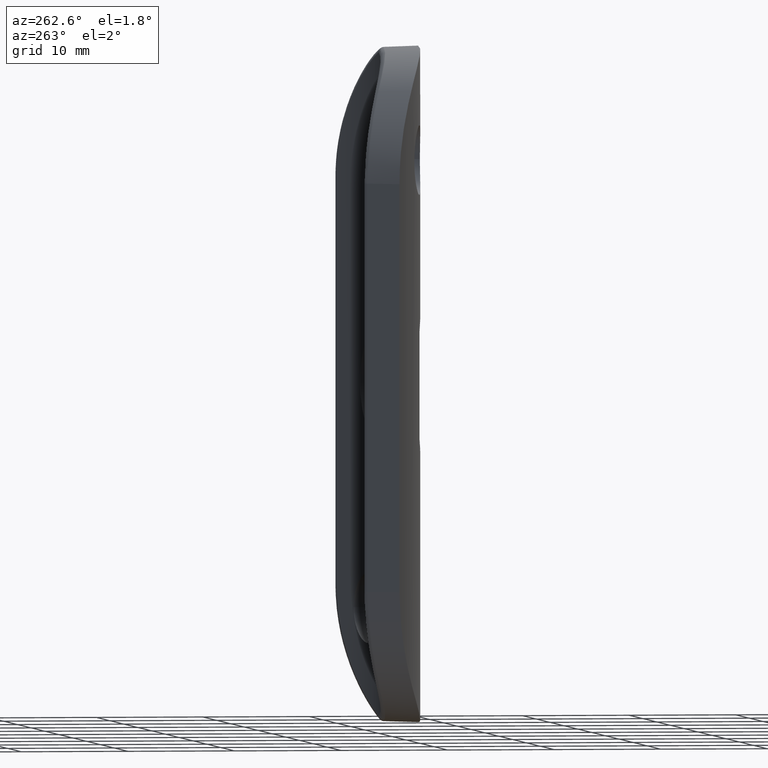
[diagram: clean part render]
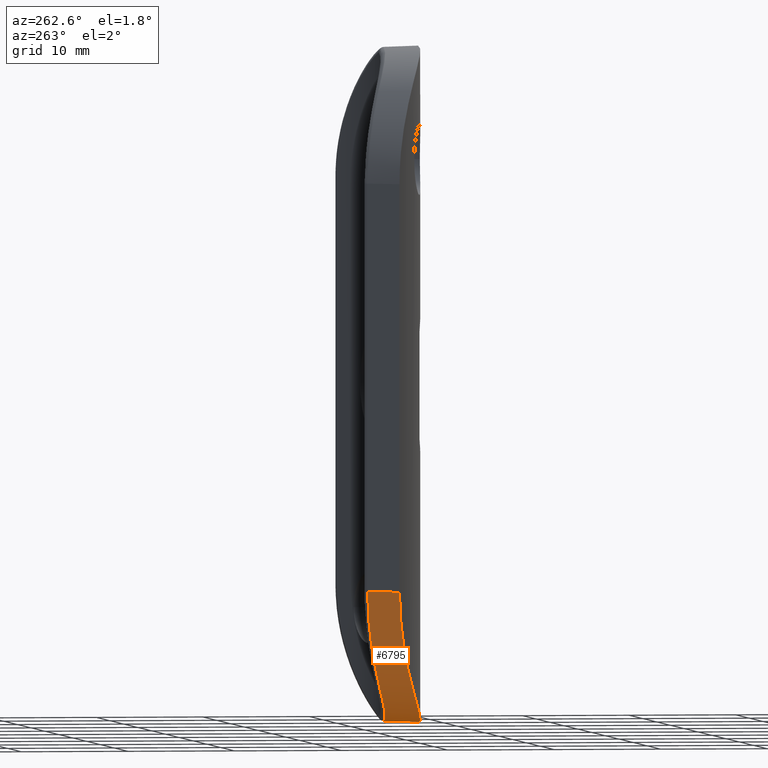
[diagram: same view with one face highlighted and labeled with its STEP entity id]
A machine part, auxiliary view. The second image highlights one B-rep face of the part: STEP entity #6795.
In plain terms, the highlighted cylindrical surface (partial cylindrical patch) has radius 12.5 mm, axis along (-0.502, -0.8649, 0).
Its self-contained STEP definition (entity closure, byte-faithful):
#140 = CARTESIAN_POINT ( 'NONE',  ( -2.016021714778223251E-15, -3.699999999999998401, -31.50000000000000000 ) ) ;
#177 = CARTESIAN_POINT ( 'NONE',  ( -9.300008146786327146, -1.900049482960085134, -27.73941482228949340 ) ) ;
#359 = CARTESIAN_POINT ( 'NONE',  ( -3.338558843723539393, -3.478577582102126975, -31.14149012677146189 ) ) ;
#551 = CARTESIAN_POINT ( 'NONE',  ( -1.526829681125241756, -0.3965501718721280433, -31.14486316553925249 ) ) ;
#597 = CARTESIAN_POINT ( 'NONE',  ( -6.018685622804217594, 0.4243408902976385511, -29.17129357762807373 ) ) ;
#970 = VECTOR ( 'NONE', #4106, 1000.000000000000227 ) ;
#1079 = ORIENTED_EDGE ( 'NONE', *, *, #3726, .F. ) ;
#1298 = CARTESIAN_POINT ( 'NONE',  ( -10.31210575782371919, -1.465570699199099103, -26.45786494367684583 ) ) ;
#1499 = CARTESIAN_POINT ( 'NONE',  ( -10.56531761606724018, 2.261153944151151229, -22.04284560907184698 ) ) ;
#1536 = CARTESIAN_POINT ( 'NONE',  ( -5.065702197598429102, 0.1728216056635648035, -29.78806897644024332 ) ) ;
#1648 = ORIENTED_EDGE ( 'NONE', *, *, #12598, .T. ) ;
#1658 = CARTESIAN_POINT ( 'NONE',  ( -9.895329955964312418, 1.917468678574773433, -24.23304662918589614 ) ) ;
#1720 = EDGE_CURVE ( 'NONE', #7865, #6485, #7088, .T. ) ;
#2619 = CARTESIAN_POINT ( 'NONE',  ( -1.904176963450264104, -0.3623903095538331676, -31.05567707528683741 ) ) ;
#3097 = CARTESIAN_POINT ( 'NONE',  ( -2.016021714778223251E-15, -3.699999999999998401, -31.50000000000000000 ) ) ;
#3234 = CARTESIAN_POINT ( 'NONE',  ( -10.07438829399573521, -1.572627490107006532, -26.79492946129611042 ) ) ;
#3366 = EDGE_CURVE ( 'NONE', #5743, #5961, #3578, .T. ) ;
#3475 = CARTESIAN_POINT ( 'NONE',  ( -10.64252913189476324, 2.302479216670974882, -21.66950056038003325 ) ) ;
#3578 = LINE ( 'NONE', #9182, #970 ) ;
#3641 = CARTESIAN_POINT ( 'NONE',  ( -5.708646956014399976, 0.3375534250088057520, -29.38719145087422646 ) ) ;
#3698 = CARTESIAN_POINT ( 'NONE',  ( -12.20702789844867198, -0.5026615294484174656, -21.91533413186608570 ) ) ;
#3726 = EDGE_CURVE ( 'NONE', #5961, #6485, #8325, .T. ) ;
#3921 = ORIENTED_EDGE ( 'NONE', *, *, #3366, .F. ) ;
#3931 = DIRECTION ( 'NONE',  ( 0.8648629577444376659, -0.5020080321285140812, 0.000000000000000000 ) ) ;
#4094 = CARTESIAN_POINT ( 'NONE',  ( -5.702585475903297230, -3.050987619649732085, -30.36861081162538767 ) ) ;
#4106 = DIRECTION ( 'NONE',  ( -0.5020080321285140812, -0.8648629577444375549, 0.000000000000000000 ) ) ;
#4457 = CARTESIAN_POINT ( 'NONE',  ( -7.442532452984151448, 0.8776886570223541018, -27.97428042536247972 ) ) ;
#5081 = CARTESIAN_POINT ( 'NONE',  ( 2.793859383087342557E-15, -2.618632816214323977, -31.50000000000000000 ) ) ;
#5195 = B_SPLINE_CURVE_WITH_KNOTS ( 'NONE', 3,
 ( #6460, #11488, #9373, #3475, #1499, #5451, #5497, #1658, #9411, #8411, #9540, #12284, #8495, #4457, #10416, #597, #3641, #1536, #6587, #11366, #11406, #2619, #551, #5578, #10535, #12444 ),
 .UNSPECIFIED., .F., .F.,
 ( 4, 2, 2, 2, 2, 2, 2, 2, 2, 2, 2, 2, 4 ),
 ( 0.000000000000000000, 0.002296403821923590199, 0.003444605732885385081, 0.004592807643847180397, 0.006889211465770759754, 0.008037413376732551601, 0.009185615287694341713, 0.01148201910961793235, 0.01263022102057972246, 0.01377842293154151430, 0.01607482675346509279, 0.01722302866442688637, 0.01837123057538867649 ),
 .UNSPECIFIED. ) ;
#5216 = CARTESIAN_POINT ( 'NONE',  ( -4.149397095232772337, -3.355257489485060862, -30.92713428512036700 ) ) ;
#5451 = CARTESIAN_POINT ( 'NONE',  ( -10.37901783092901553, 2.163308026600583744, -22.78354983175703907 ) ) ;
#5497 = CARTESIAN_POINT ( 'NONE',  ( -10.26920461469039658, 2.106422435699069062, -23.15280607631128262 ) ) ;
#5578 = CARTESIAN_POINT ( 'NONE',  ( -0.7683342868648501689, -0.4460393953555568114, -31.29188355289227985 ) ) ;
#5676 = CARTESIAN_POINT ( 'NONE',  ( -11.89509760923781556, -0.6753860525964977546, -23.12875431539337256 ) ) ;
#5743 = VERTEX_POINT ( 'NONE', #8493 ) ;
#5869 = CARTESIAN_POINT ( 'NONE',  ( -1.689213028194525013, -6.610188049442923486, -19.00000000000000355 ) ) ;
#5936 = CYLINDRICAL_SURFACE ( 'NONE', #8647, 12.50000000000000178 ) ;
#5961 = VERTEX_POINT ( 'NONE', #9554 ) ;
#6030 = CARTESIAN_POINT ( 'NONE',  ( 2.309036246115207171E-15, -1.539556005456988119, -31.46468694567383650 ) ) ;
#6163 = CARTESIAN_POINT ( 'NONE',  ( -4.544984467126861993, -3.284854228750729188, -30.80156398158714026 ) ) ;
#6376 = ORIENTED_EDGE ( 'NONE', *, *, #1720, .T. ) ;
#6460 = CARTESIAN_POINT ( 'NONE',  ( -10.89068216193508576, 2.437456407839871275, -19.00000000000000355 ) ) ;
#6485 = VERTEX_POINT ( 'NONE', #7218 ) ;
#6587 = CARTESIAN_POINT ( 'NONE',  ( -4.735884520321929081, 0.09562791914021717687, -29.97130340277394822 ) ) ;
#6795 = ADVANCED_FACE ( 'NONE', ( #12240 ), #5936, .T. ) ;
#7088 =( BOUNDED_CURVE ( )  B_SPLINE_CURVE ( 3, ( #11925, #6030, #5081, #140 ),
 .UNSPECIFIED., .F., .T. ) 
 B_SPLINE_CURVE_WITH_KNOTS ( ( 4, 4 ),
 ( 1.440603158773790415, 1.570796326794896336 ),
 .UNSPECIFIED. ) 
 CURVE ( )  GEOMETRIC_REPRESENTATION_ITEM ( )  RATIONAL_B_SPLINE_CURVE ( ( 1.000000000000000000, 0.9985879769840240172, 0.9985879769840240172, 1.000000000000000000 ) ) 
 REPRESENTATION_ITEM ( '' )  );
#7133 = EDGE_LOOP ( 'NONE', ( #3921, #1648, #6376, #1079 ) ) ;
#7140 = CARTESIAN_POINT ( 'NONE',  ( -2.926783807945073423, -3.530881000595796682, -31.22921292494588030 ) ) ;
#7218 = CARTESIAN_POINT ( 'NONE',  ( -2.016021714778223251E-15, -3.699999999999998401, -31.50000000000000000 ) ) ;
#7274 = CARTESIAN_POINT ( 'NONE',  ( -1.687016327122348391, -3.656671740366639778, -31.43580141742700107 ) ) ;
#7736 = CARTESIAN_POINT ( 'NONE',  ( -12.49999999999999822, -0.3350876478364975264, -19.84933832110929686 ) ) ;
#7865 = VERTEX_POINT ( 'NONE', #10410 ) ;
#8325 = B_SPLINE_CURVE_WITH_KNOTS ( 'NONE', 3,
 ( #8963, #7736, #10674, #3698, #11578, #5676, #12542, #11965, #10029, #1298, #3234, #9091, #177, #12043, #12133, #12003, #4094, #6163, #5216, #359, #7140, #7274, #10991, #3097 ),
 .UNSPECIFIED., .F., .F.,
 ( 4, 2, 2, 2, 2, 2, 2, 2, 2, 2, 2, 4 ),
 ( 3.480018757039481625E-18, 0.002512006382847119679, 0.003768009574270677568, 0.005024012765694235889, 0.007536019148541359472, 0.008792022339964926034, 0.01004802553138849260, 0.01256003191423563439, 0.01507203829708277619, 0.01632804148850634449, 0.01758404467992991799, 0.02009605106277705805 ),
 .UNSPECIFIED. ) ;
#8411 = CARTESIAN_POINT ( 'NONE',  ( -9.035279559040494846, 1.517712944394772112, -25.89464071519140376 ) ) ;
#8493 = CARTESIAN_POINT ( 'NONE',  ( -10.89068216193508576, 2.437456407839871275, -19.00000000000000355 ) ) ;
#8495 = CARTESIAN_POINT ( 'NONE',  ( -8.172666840697733193, 1.156575065583176798, -27.12569061865150033 ) ) ;
#8647 = AXIS2_PLACEMENT_3D ( 'NONE', #5869, #10656, #3931 ) ;
#8963 = CARTESIAN_POINT ( 'NONE',  ( -12.50000000000001599, -0.3350876478364871458, -19.00000000000000355 ) ) ;
#9091 = CARTESIAN_POINT ( 'NONE',  ( -9.568186480140036920, -1.789903648833349958, -27.43561721253433561 ) ) ;
#9182 = CARTESIAN_POINT ( 'NONE',  ( -12.49999999999999645, -0.3350876478364958055, -19.00000000000000355 ) ) ;
#9373 = CARTESIAN_POINT ( 'NONE',  ( -10.82802512140448137, 2.402563072010280187, -20.54065016212288342 ) ) ;
#9411 = CARTESIAN_POINT ( 'NONE',  ( -9.587749169269606853, 1.767324810813491798, -24.91827199489954836 ) ) ;
#9540 = CARTESIAN_POINT ( 'NONE',  ( -8.835835642423358394, 1.430437285731799069, -26.21146494651178926 ) ) ;
#9554 = CARTESIAN_POINT ( 'NONE',  ( -12.50000000000001599, -0.3350876478364871458, -19.00000000000000355 ) ) ;
#10029 = CARTESIAN_POINT ( 'NONE',  ( -10.96467542959309149, -1.161045902359137516, -25.42122180251615760 ) ) ;
#10410 = CARTESIAN_POINT ( 'NONE',  ( 1.827295905136490173E-15, -0.4673406116063785198, -31.39421042555792241 ) ) ;
#10416 = CARTESIAN_POINT ( 'NONE',  ( -6.904985649179104179, 0.6907721564610239673, -28.48531783296846598 ) ) ;
#10535 = CARTESIAN_POINT ( 'NONE',  ( -0.3857525109607633507, -0.4615508653606008038, -31.35014733435442125 ) ) ;
#10656 = DIRECTION ( 'NONE',  ( -0.5020080321285140812, -0.8648629577444374439, 0.000000000000000000 ) ) ;
#10674 = CARTESIAN_POINT ( 'NONE',  ( -12.42611937217493789, -0.3784556363442525551, -20.68412196678094261 ) ) ;
#10991 = CARTESIAN_POINT ( 'NONE',  ( -0.8488730557296993995, -3.699999999999998401, -31.50000000000000711 ) ) ;
#11366 = CARTESIAN_POINT ( 'NONE',  ( -3.722145375514099630, -0.1174825666102558980, -30.47237530460908062 ) ) ;
#11406 = CARTESIAN_POINT ( 'NONE',  ( -3.014047091458879279, -0.2349810422590879744, -30.74181323010165201 ) ) ;
#11488 = CARTESIAN_POINT ( 'NONE',  ( -10.89068216193508754, 2.437456407839875716, -19.77640825180817430 ) ) ;
#11578 = CARTESIAN_POINT ( 'NONE',  ( -12.11577572006955883, -0.5539385120120599026, -22.32221680568263622 ) ) ;
#11925 = CARTESIAN_POINT ( 'NONE',  ( 1.827295905136490173E-15, -0.4673406116063785198, -31.39421042555792241 ) ) ;
#11965 = CARTESIAN_POINT ( 'NONE',  ( -11.32608375106080700, -0.9774540626461267756, -24.68877295883127587 ) ) ;
#12003 = CARTESIAN_POINT ( 'NONE',  ( -6.435638079610197515, -2.864824577561238872, -30.00547389194408510 ) ) ;
#12043 = CARTESIAN_POINT ( 'NONE',  ( -8.449802095229946630, -2.230334934299037730, -28.60253261386501578 ) ) ;
#12133 = CARTESIAN_POINT ( 'NONE',  ( -7.821761307487162362, -2.450650508796179849, -29.11446918489123092 ) ) ;
#12240 = FACE_OUTER_BOUND ( 'NONE', #7133, .T. ) ;
#12284 = CARTESIAN_POINT ( 'NONE',  ( -8.404436157681661967, 1.249794867364262041, -26.82734984694794633 ) ) ;
#12444 = CARTESIAN_POINT ( 'NONE',  ( 1.827295905136490173E-15, -0.4673406116063785198, -31.39421042555792241 ) ) ;
#12542 = CARTESIAN_POINT ( 'NONE',  ( -11.76537792772362678, -0.7456896149799595586, -23.52832616865286042 ) ) ;
#12598 = EDGE_CURVE ( 'NONE', #5743, #7865, #5195, .T. ) ;